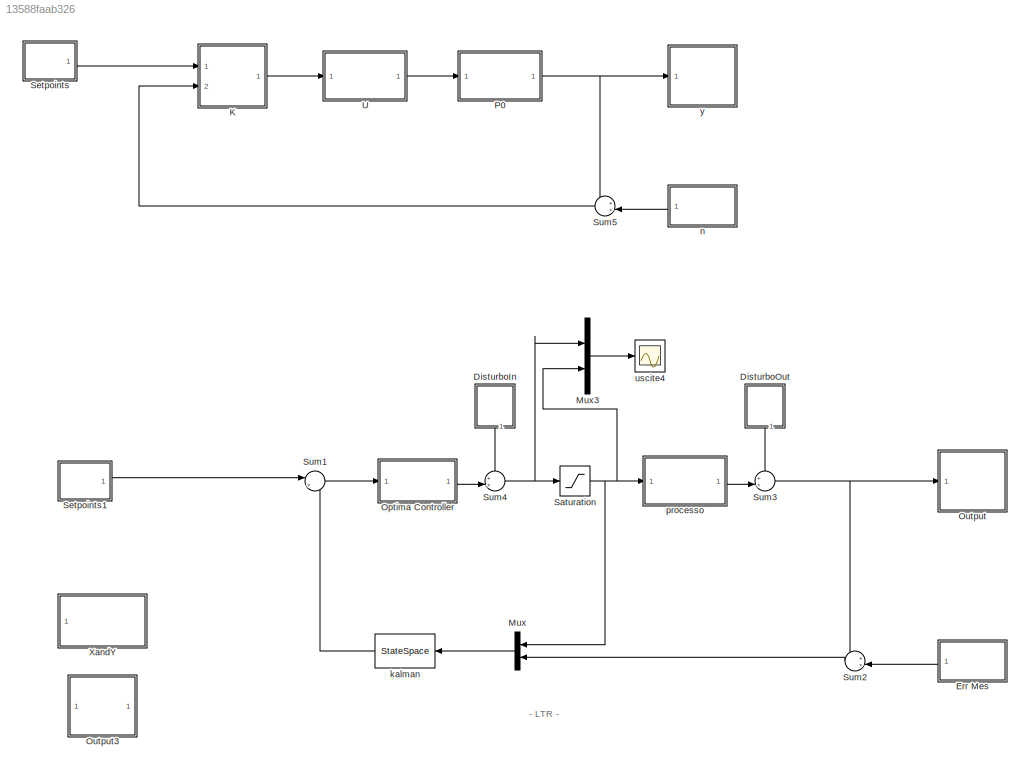
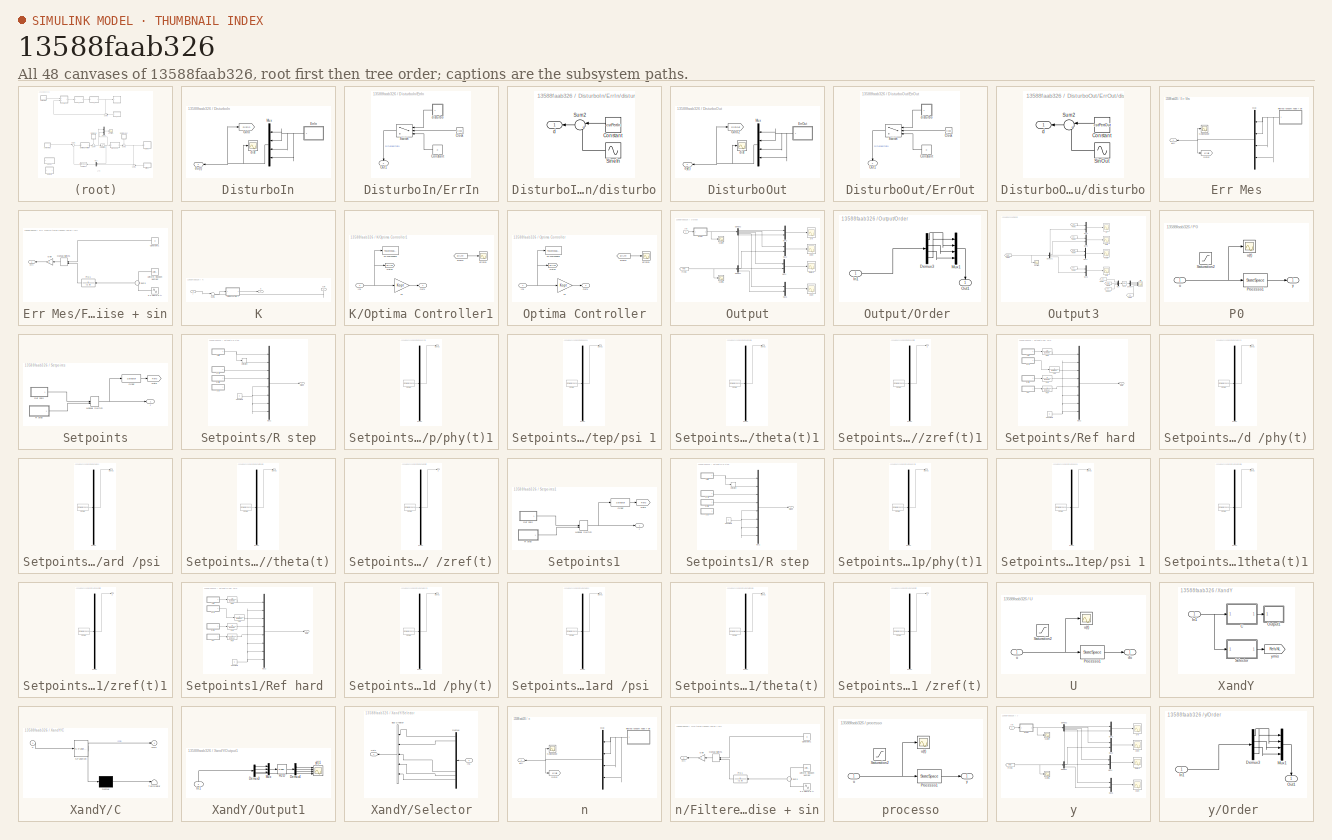
[diagram: thumbnail index - all 48 canvases of the model, root first then tree order]
MODEL slx_13588faab326
KIND model
CONFIG AbsTol = auto
CONFIG EnableMultiTasking = on
CONFIG FixedStep = auto
CONFIG MaxStep = auto
CONFIG MinStep = auto
CONFIG RelTol = 1e-3
CONFIG SampleTimeConstraint = Unconstrained
CONFIG Solver = ode45
CONFIG SolverName = ode45
CONFIG StartTime = 0.0
CONFIG StopTime = 20
BLOCK [StateSpace]  kalman 
  A = KAoss
  B = KBossw
  C = KCoss
  D = KDoss
  Ports = [1, 1]
  X0 = 0
BLOCK [SubSystem] DisturboIn
  Ports = [0, 1]
  RequestExecContextInheritance = off
  Variant = off
BLOCK [SubSystem] DisturboIn/ErrIn
  Ports = [0, 1]
  RequestExecContextInheritance = off
  Variant = off
BLOCK [Clock] DisturboIn/ErrIn/Clock
BLOCK [Constant] DisturboIn/ErrIn/Constant
  Value = 0
BLOCK [Outport] DisturboIn/ErrIn/Out1
  IconDisplay = Port number
BLOCK [Switch] DisturboIn/ErrIn/Switch
  InputSameDT = off
  SaturateOnIntegerOverflow = off
  Threshold = 5
BLOCK [SubSystem] DisturboIn/ErrIn/disturbo
  Ports = [0, 1]
  RequestExecContextInheritance = off
  Variant = off
BLOCK [Constant] DisturboIn/ErrIn/disturbo/Constant
  Value = cstPertIn
BLOCK [Sin] DisturboIn/ErrIn/disturbo/SineIn
  Amplitude = amplitudePertIn
  Frequency = omegaPertIN
  Ports = [0, 1]
  SampleTime = 0
BLOCK [Sum] DisturboIn/ErrIn/disturbo/Sum2
  IconShape = round
  InputSameDT = off
  Inputs = |++
  OutDataTypeStr = Inherit: Inherit via internal rule
  Ports = [2, 1]
  SaturateOnIntegerOverflow = off
BLOCK [Outport] DisturboIn/ErrIn/disturbo/d
  IconDisplay = Port number
BLOCK [Goto] DisturboIn/Goto
  GotoTag = DistIn
  TagVisibility = global
BLOCK [Mux] DisturboIn/Mux
  DisplayOption = bar
  Inputs = [1 1 1 1]
  Ports = [4, 1]
BLOCK [Scope] DisturboIn/dist
  NumInputPorts = 1
  Ports = [1]
  ScopeSpecificationString = C++SS(StrPVP('Location','[71, 119, 1081, 656]'),StrPVP('Open','off'),MxPVP('AxesTitles',53,'struct(''axes1'',''%<SignalLabel>'')'),MxPVP('ScopeGraphics',56,'struct(''FigureColor'',''[0.5 0.5 0.5]'',''AxesColor'',''[0 0 0]'',''AxesTickColor'',''[1 1 1]'',''LineColors'',''[1 1 0;1 0 1;0 1 1;1 0 0;0 1 0;0 0 1]'',''LineStyles'',''-|-|-|-|-|-'',''LineWidths'',''[0.5 0.5 0.5 0.5 0.5 0.5]'',''MarkerStyle...<+314ch>
BLOCK [Outport] DisturboIn/du(t)
  IconDisplay = Port number
BLOCK [SubSystem] DisturboOut
  Ports = [0, 1]
  RequestExecContextInheritance = off
  Variant = off
BLOCK [SubSystem] DisturboOut/ErrOut
  Ports = [0, 1]
  RequestExecContextInheritance = off
  Variant = off
BLOCK [Clock] DisturboOut/ErrOut/Clock
BLOCK [Constant] DisturboOut/ErrOut/Constant
  Value = 0
BLOCK [Outport] DisturboOut/ErrOut/Out1
  IconDisplay = Port number
BLOCK [Switch] DisturboOut/ErrOut/Switch
  InputSameDT = off
  SaturateOnIntegerOverflow = off
  Threshold = 5
BLOCK [SubSystem] DisturboOut/ErrOut/disturbo
  Ports = [0, 1]
  RequestExecContextInheritance = off
  Variant = off
BLOCK [Constant] DisturboOut/ErrOut/disturbo/Constant
  Value = cstPertOut
BLOCK [Sin] DisturboOut/ErrOut/disturbo/SinOut
  Amplitude = amplitudePertOut
  Frequency = omegaPertOut
  Ports = [0, 1]
  SampleTime = 0
BLOCK [Sum] DisturboOut/ErrOut/disturbo/Sum2
  IconShape = round
  InputSameDT = off
  Inputs = |++
  OutDataTypeStr = Inherit: Inherit via internal rule
  Ports = [2, 1]
  SaturateOnIntegerOverflow = off
BLOCK [Outport] DisturboOut/ErrOut/disturbo/d
  IconDisplay = Port number
BLOCK [Goto] DisturboOut/Goto2
  GotoTag = DistOut
  TagVisibility = global
BLOCK [Mux] DisturboOut/Mux
  DisplayOption = bar
  Inputs = [1 1 1 1]
  Ports = [4, 1]
BLOCK [Scope] DisturboOut/dist
  NumInputPorts = 1
  Ports = [1]
  ScopeSpecificationString = C++SS(StrPVP('Location','[76, 122, 1076, 657]'),StrPVP('Open','off'),MxPVP('AxesTitles',53,'struct(''axes1'',''%<SignalLabel>'')'),MxPVP('ScopeGraphics',56,'struct(''FigureColor'',''[0.5 0.5 0.5]'',''AxesColor'',''[0 0 0]'',''AxesTickColor'',''[1 1 1]'',''LineColors'',''[1 1 0;1 0 1;0 1 1;1 0 0;0 1 0;0 0 1]'',''LineStyles'',''-|-|-|-|-|-'',''LineWidths'',''[0.5 0.5 0.5 0.5 0.5 0.5]'',''MarkerStyle...<+310ch>
BLOCK [Outport] DisturboOut/dy(t) 
  IconDisplay = Port number
BLOCK [SubSystem] Err Mes
  Ports = [0, 1]
  RequestExecContextInheritance = off
  Variant = off
BLOCK [Outport] Err Mes/  d(t)
  IconDisplay = Port number
BLOCK [SubSystem] Err Mes/Filtered random noise + sin
  Ports = [0, 1]
  RequestExecContextInheritance = off
  Variant = off
BLOCK [Sin] Err Mes/Filtered random noise + sin/0.2 sen(0.5 t)
  Amplitude = amplitudeNoise
  Frequency = omegaNoise
  Phase = 1
  Ports = [0, 1]
  SampleTime = 0
BLOCK [Constant] Err Mes/Filtered random noise + sin/Constant1
  Value = 0
BLOCK [Gain] Err Mes/Filtered random noise + sin/Gain
  OutDataTypeStr = Inherit: Inherit via internal rule
  ParamDataTypeStr = Inherit: Inherit via internal rule
  SaturateOnIntegerOverflow = off
BLOCK [ManualSwitch] Err Mes/Filtered random noise + sin/Manual Switch1
  CurrentSetting = 0
BLOCK [TransferFcn] Err Mes/Filtered random noise + sin/P(s)1
  Denominator = [1 9]
  Numerator = 1
BLOCK [Sum] Err Mes/Filtered random noise + sin/Sum3
  IconShape = round
  InputSameDT = off
  OutDataTypeStr = Inherit: Inherit via internal rule
  Ports = [2, 1]
  SaturateOnIntegerOverflow = off
BLOCK [UniformRandomNumber] Err Mes/Filtered random noise + sin/Uniform Random Number
  Maximum = randomAmpNoise
  Minimum = -randomAmpNoise
  SampleTime = 0.1
BLOCK [Outport] Err Mes/Filtered random noise + sin/n(t)
  IconDisplay = Port number
BLOCK [Goto] Err Mes/Goto2
  GotoTag = errMis
  TagVisibility = global
BLOCK [Mux] Err Mes/Mux
  DisplayOption = bar
  Inputs = [1 1 1 1]
  Ports = [4, 1]
BLOCK [Scope] Err Mes/NoiseScope
  NumInputPorts = 1
  Ports = [1]
  ScopeSpecificationString = C++SS(StrPVP('Location','[71, 155, 689, 419]'),StrPVP('Open','off'),MxPVP('AxesTitles',53,'struct(''axes1'',''%<SignalLabel>'')'),MxPVP('ScopeGraphics',56,'struct(''FigureColor'',''[0.5 0.5 0.5]'',''AxesColor'',''[0 0 0]'',''AxesTickColor'',''[1 1 1]'',''LineColors'',''[1 1 0;1 0 1;0 1 1;1 0 0;0 1 0;0 0 1]'',''LineStyles'',''-|-|-|-|-|-'',''LineWidths'',''[0.5 0.5 0.5 0.5 0.5 0.5]'',''MarkerStyles...<+291ch>
BLOCK [SubSystem] K
  Ports = [2, 1]
  RequestExecContextInheritance = off
  Variant = off
BLOCK [SubSystem] K/Optima Controller1
  Ports = [1, 1]
  RequestExecContextInheritance = off
  Variant = off
BLOCK [Gain] K/Optima Controller1/F1
  Gain = Kopt
  Multiplication = Matrix(K*u) (u vector)
  OutDataTypeStr = Inherit: Inherit via internal rule
  ParamDataTypeStr = Inherit: Inherit via internal rule
  SaturateOnIntegerOverflow = off
BLOCK [From] K/Optima Controller1/From3
  GotoTag = ErrLTR
  TagVisibility = global
BLOCK [Goto] K/Optima Controller1/Goto1
  GotoTag = ErrLTR
  TagVisibility = global
BLOCK [Inport] K/Optima Controller1/In1
  IconDisplay = Port number
BLOCK [Outport] K/Optima Controller1/Out1
  IconDisplay = Port number
BLOCK [ToWorkspace] K/Optima Controller1/To Workspace
  MaxDataPoints = inf
  Ports = [1]
  SampleTime = -1
  SaveFormat = Structure
  VariableName = errSimLTR
BLOCK [Scope] K/Optima Controller1/errore1
  NumInputPorts = 1
  Ports = [1]
  ScopeSpecificationString = C++SS(StrPVP('Location','[71, 94, 1081, 628]'),StrPVP('Open','off'),StrPVP('ZoomMode','xonly'),MxPVP('AxesTitles',53,'struct(''axes1'',''%<SignalLabel>'')'),MxPVP('ScopeGraphics',56,'struct(''FigureColor'',''[0.5 0.5 0.5]'',''AxesColor'',''[0 0 0]'',''AxesTickColor'',''[1 1 1]'',''LineColors'',''[1 1 0;1 0 1;0 1 1;1 0 0;0 1 0;0 0 1]'',''LineStyles'',''-|-|-|-|-|-'',''LineWidths'',''[0.5 0.5 0.5 0....<+338ch>
BLOCK [Sum] K/Sum5
  IconShape = round
  InputSameDT = off
  Inputs = |+-
  OutDataTypeStr = Inherit: Inherit via internal rule
  Ports = [2, 1]
  SaturateOnIntegerOverflow = off
BLOCK [Inport] K/r
  IconDisplay = Port number
BLOCK [Outport] K/u
  IconDisplay = Port number
BLOCK [Inport] K/y+n
  IconDisplay = Port number
  Port = 2
BLOCK [Mux] Mux
  DisplayOption = bar
  Inputs = 2
  Ports = [2, 1]
BLOCK [Mux] Mux3
  DisplayOption = bar
  Inputs = 2
  Ports = [2, 1]
BLOCK [SubSystem] Optima Controller
  Ports = [1, 1]
  RequestExecContextInheritance = off
  Variant = off
BLOCK [Gain] Optima Controller/F1
  Gain = Kopt
  Multiplication = Matrix(K*u) (u vector)
  OutDataTypeStr = Inherit: Inherit via internal rule
  ParamDataTypeStr = Inherit: Inherit via internal rule
  SaturateOnIntegerOverflow = off
BLOCK [From] Optima Controller/From3
  GotoTag = ErrLTR
  TagVisibility = global
BLOCK [Goto] Optima Controller/Goto1
  GotoTag = ErrLTR
  TagVisibility = global
BLOCK [Inport] Optima Controller/In1
  IconDisplay = Port number
BLOCK [Outport] Optima Controller/Out1
  IconDisplay = Port number
BLOCK [ToWorkspace] Optima Controller/To Workspace
  MaxDataPoints = inf
  Ports = [1]
  SampleTime = -1
  SaveFormat = Structure
  VariableName = errSimLTR
BLOCK [Scope] Optima Controller/errore1
  NumInputPorts = 1
  Ports = [1]
  ScopeSpecificationString = C++SS(StrPVP('Location','[71, 94, 1081, 628]'),StrPVP('Open','off'),StrPVP('ZoomMode','xonly'),MxPVP('AxesTitles',53,'struct(''axes1'',''%<SignalLabel>'')'),MxPVP('ScopeGraphics',56,'struct(''FigureColor'',''[0.5 0.5 0.5]'',''AxesColor'',''[0 0 0]'',''AxesTickColor'',''[1 1 1]'',''LineColors'',''[1 1 0;1 0 1;0 1 1;1 0 0;0 1 0;0 0 1]'',''LineStyles'',''-|-|-|-|-|-'',''LineWidths'',''[0.5 0.5 0.5 0....<+338ch>
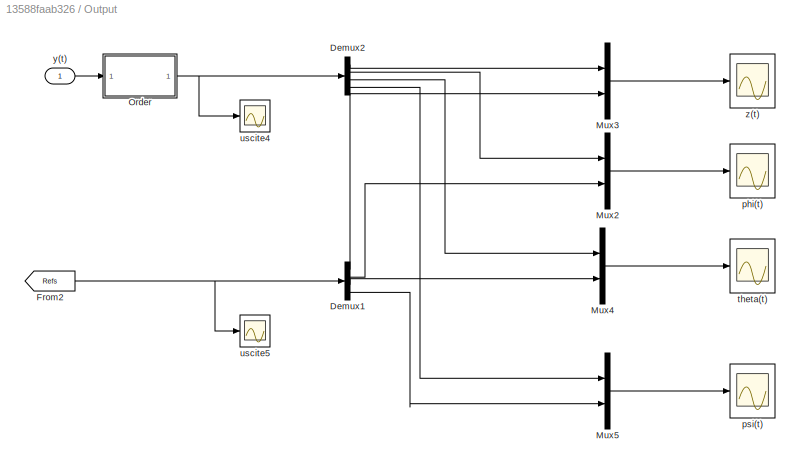
BLOCK [SubSystem] Output
  Ports = [1]
  RequestExecContextInheritance = off
  Variant = off
BLOCK [Demux] Output/Demux1
  DisplayOption = bar
  Ports = [1, 4]
BLOCK [Demux] Output/Demux2
  DisplayOption = bar
  Ports = [1, 4]
BLOCK [From] Output/From2
  GotoTag = Refs
  TagVisibility = global
BLOCK [Mux] Output/Mux2
  DisplayOption = bar
  Inputs = 2
  Ports = [2, 1]
BLOCK [Mux] Output/Mux3
  DisplayOption = bar
  Inputs = 2
  Ports = [2, 1]
BLOCK [Mux] Output/Mux4
  DisplayOption = bar
  Inputs = 2
  Ports = [2, 1]
BLOCK [Mux] Output/Mux5
  DisplayOption = bar
  Inputs = 2
  Ports = [2, 1]
BLOCK [SubSystem] Output/Order 
  Ports = [1, 1]
  RequestExecContextInheritance = off
  Variant = off
BLOCK [Demux] Output/Order /Demux3
  DisplayOption = bar
  Ports = [1, 4]
BLOCK [Inport] Output/Order /In1
  IconDisplay = Port number
BLOCK [Mux] Output/Order /Mux1
  DisplayOption = bar
  Ports = [4, 1]
BLOCK [Outport] Output/Order /Out1
  IconDisplay = Port number
BLOCK [Scope] Output/phi(t)
  NumInputPorts = 1
  Ports = [1]
  ScopeSpecificationString = Simulink.scopes.TimeScopeBlockCfg('CurrentConfiguration', extmgr.ConfigurationSet(extmgr.Configuration('Core','General UI',true),extmgr.Configuration('Core','Source UI',true),extmgr.Configuration('Sources','WiredSimulink',true,'DataLoggingVariableName','ScopeData4','DataLoggingSaveFormat','StructureWithTime','DataLoggingDecimation','1','DataLoggingDecimateData',true),extmgr.Configuration('Visuals'...<+1777ch>
BLOCK [Scope] Output/psi(t)
  NumInputPorts = 1
  Ports = [1]
  ScopeSpecificationString = Simulink.scopes.TimeScopeBlockCfg('CurrentConfiguration', extmgr.ConfigurationSet(extmgr.Configuration('Core','General UI',true),extmgr.Configuration('Core','Source UI',true),extmgr.Configuration('Sources','WiredSimulink',true,'DataLoggingVariableName','ScopeData7','DataLoggingSaveFormat','StructureWithTime','DataLoggingDecimation','1','DataLoggingDecimateData',true),extmgr.Configuration('Visuals'...<+1754ch>
BLOCK [Scope] Output/theta(t)
  NumInputPorts = 1
  Ports = [1]
  ScopeSpecificationString = Simulink.scopes.TimeScopeBlockCfg('CurrentConfiguration', extmgr.ConfigurationSet(extmgr.Configuration('Core','General UI',true),extmgr.Configuration('Core','Source UI',true),extmgr.Configuration('Sources','WiredSimulink',true,'DataLoggingVariableName','ScopeData6','DataLoggingSaveFormat','StructureWithTime','DataLoggingDecimation','1','DataLoggingDecimateData',true),extmgr.Configuration('Visuals'...<+1726ch>
BLOCK [Scope] Output/uscite4
  NumInputPorts = 1
  Ports = [1]
  ScopeSpecificationString = Simulink.scopes.TimeScopeBlockCfg('CurrentConfiguration', extmgr.ConfigurationSet(extmgr.Configuration('Core','General UI',true),extmgr.Configuration('Core','Source UI',true),extmgr.Configuration('Sources','WiredSimulink',true,'DataLoggingVariableName','ScopeData2','DataLoggingSaveFormat','StructureWithTime','DataLoggingDecimation','1','DataLoggingDecimateData',true),extmgr.Configuration('Visuals'...<+1752ch>
BLOCK [Scope] Output/uscite5
  NumInputPorts = 1
  Ports = [1]
  ScopeSpecificationString = C++SS(StrPVP('Location','[76, 81, 1076, 613]'),StrPVP('Open','off'),MxPVP('AxesTitles',53,'struct(''axes1'',''%<SignalLabel>'')'),MxPVP('ScopeGraphics',56,'struct(''FigureColor'',''[0.5 0.5 0.5]'',''AxesColor'',''[0 0 0]'',''AxesTickColor'',''[1 1 1]'',''LineColors'',''[1 1 0;1 0 1;0 1 1;1 0 0;0 1 0;0 0 1]'',''LineStyles'',''-|-|-|-|-|-'',''LineWidths'',''[0.5 0.5 0.5 0.5 0.5 0.5]'',''MarkerStyles...<+312ch>  <repeated x3 — deduplicated; at blocks: uscite5>
BLOCK [Inport] Output/y(t)
  IconDisplay = Port number
BLOCK [Scope] Output/z(t)
  NumInputPorts = 1
  Ports = [1]
  ScopeSpecificationString = Simulink.scopes.TimeScopeBlockCfg('CurrentConfiguration', extmgr.ConfigurationSet(extmgr.Configuration('Core','General UI',true,'FigureColor',[0.501960784313725 0.501960784313725 0.501960784313725]),extmgr.Configuration('Core','Source UI',true),extmgr.Configuration('Sources','WiredSimulink',true,'DataLoggingSaveFormat','StructureWithTime','DataLoggingDecimation','1','DataLoggingDecimateData',true)...<+2794ch>
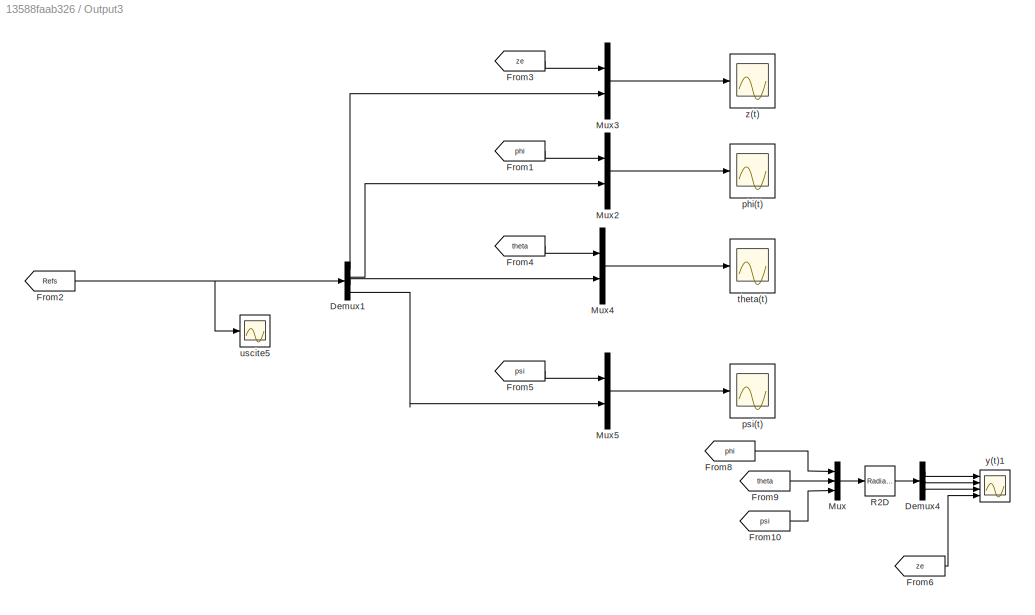
BLOCK [SubSystem] Output3
  Ports = []
  RequestExecContextInheritance = off
  Variant = off
BLOCK [Demux] Output3/Demux1
  DisplayOption = bar
  Ports = [1, 4]
BLOCK [Demux] Output3/Demux4
  DisplayOption = bar
  Outputs = 3
  Ports = [1, 3]
BLOCK [From] Output3/From1
  GotoTag = phi
BLOCK [From] Output3/From10
  GotoTag = psi
BLOCK [From] Output3/From2
  GotoTag = Refs
  TagVisibility = global
BLOCK [From] Output3/From3
  GotoTag = ze
BLOCK [From] Output3/From4
  GotoTag = theta
BLOCK [From] Output3/From5
  GotoTag = psi
BLOCK [From] Output3/From6
  GotoTag = ze
BLOCK [From] Output3/From8
  GotoTag = phi
BLOCK [From] Output3/From9
  GotoTag = theta
BLOCK [Mux] Output3/Mux
  DisplayOption = bar
  Inputs = 3
  Ports = [3, 1]
BLOCK [Mux] Output3/Mux2
  DisplayOption = bar
  Inputs = 2
  Ports = [2, 1]
BLOCK [Mux] Output3/Mux3
  DisplayOption = bar
  Inputs = 2
  Ports = [2, 1]
BLOCK [Mux] Output3/Mux4
  DisplayOption = bar
  Inputs = 2
  Ports = [2, 1]
BLOCK [Mux] Output3/Mux5
  DisplayOption = bar
  Inputs = 2
  Ports = [2, 1]
BLOCK [Reference] Output3/R2D  REF=simulink_extras/Transformations/Radians
to Degrees
  Ports = [1, 1]
  SourceBlock = simulink_extras/Transformations/Radians\nto Degrees
  SourceProductBaseCode = SL
  SourceProductName = Simulink
  SourceType = RadiansToDegrees
BLOCK [Scope] Output3/phi(t)
  NumInputPorts = 1
  Ports = [1]
  ScopeSpecificationString = C++SS(StrPVP('Location','[171, 167, 1171, 702]'),StrPVP('Open','off'),StrPVP('TickLabels','on'),MxPVP('AxesTitles',53,'struct(''axes1'',''%<SignalLabel>'')'),MxPVP('ScopeGraphics',56,'struct(''FigureColor'',''[0.501960784313725 0.501960784313725 0.501960784313725]'',''AxesColor'',''[0 0 0]'',''AxesTickColor'',''[1 1 1]'',''LineColors'',''[1 1 0;1 0 1;0 1 1;1 0 0;0 1 0;0 0 1]'',''LineStyles'',''-|-...<+406ch>
BLOCK [Scope] Output3/psi(t)
  NumInputPorts = 1
  Ports = [1]
  ScopeSpecificationString = C++SS(StrPVP('Location','[206, 278, 1206, 757]'),StrPVP('Open','off'),StrPVP('TickLabels','on'),MxPVP('AxesTitles',53,'struct(''axes1'',''%<SignalLabel>'')'),MxPVP('ScopeGraphics',56,'struct(''FigureColor'',''[0.501960784313725 0.501960784313725 0.501960784313725]'',''AxesColor'',''[0 0 0]'',''AxesTickColor'',''[1 1 1]'',''LineColors'',''[1 1 0;1 0 1;0 1 1;1 0 0;0 1 0;0 0 1]'',''LineStyles'',''-|-...<+384ch>
BLOCK [Scope] Output3/theta(t)
  NumInputPorts = 1
  Ports = [1]
  ScopeSpecificationString = C++SS(StrPVP('Location','[211, 110, 1231, 621]'),StrPVP('Open','off'),StrPVP('TickLabels','on'),StrPVP('ZoomMode','yonly'),MxPVP('AxesTitles',53,'struct(''axes1'',''%<SignalLabel>'')'),MxPVP('ScopeGraphics',56,'struct(''FigureColor'',''[0.501960784313725 0.501960784313725 0.501960784313725]'',''AxesColor'',''[0 0 0]'',''AxesTickColor'',''[1 1 1]'',''LineColors'',''[1 1 0;1 0 1;0 1 1;1 0 0;0 1 0;0 ...<+381ch>
BLOCK [Scope] Output3/uscite5
  NumInputPorts = 1
  Ports = [1]
BLOCK [Scope] Output3/y(t)1
  NumInputPorts = 4
  Ports = [4]
  ScopeSpecificationString = C++SS(StrPVP('Location','[54, 53, 1367, 767]'),StrPVP('Open','off'),MxPVP('AxesTitles',53,'struct(''axes1'',''%<SignalLabel>'',''axes2'',''%<SignalLabel>'',''axes3'',''%<SignalLabel>'',''axes4'',''%<SignalLabel>'')'),MxPVP('ScopeGraphics',56,'struct(''FigureColor'',''[0.501960784313725 0.501960784313725 0.501960784313725]'',''AxesColor'',''[0 0 0]'',''AxesTickColor'',''[1 1 1]'',''LineColors'',''[...<+475ch>
BLOCK [Scope] Output3/z(t)
  NumInputPorts = 1
  Ports = [1]
  ScopeSpecificationString = C++SS(StrPVP('Location','[-1295, 174, -315, 649]'),StrPVP('Open','off'),StrPVP('TickLabels','on'),MxPVP('AxesTitles',53,'struct(''axes1'',''%<SignalLabel>'')'),MxPVP('ScopeGraphics',56,'struct(''FigureColor'',''[0.501960784313725 0.501960784313725 0.501960784313725]'',''AxesColor'',''[0 0 0]'',''AxesTickColor'',''[1 1 1]'',''LineColors'',''[0.0392156862745098 0.141176470588235 0.415686274509804;0 ...<+398ch>
BLOCK [SubSystem] P0
  Ports = [1, 1]
  RequestExecContextInheritance = off
  Variant = off
BLOCK [StateSpace] P0/Processo1
  A = A0
  B = B0
  C = C0
  D = D0
  Ports = [1, 1]
  X0 = 0
BLOCK [Saturate] P0/Saturation2
  InputPortMap = u0
  LowerLimit = -24000
  Ports = [1, 1]
  UpperLimit = 24000
BLOCK [Inport] P0/u
  IconDisplay = Port number
BLOCK [Scope] P0/u(t) 
  NumInputPorts = 1
  Ports = [1]
  ScopeSpecificationString = C++SS(StrPVP('Location','[71, 168, 1081, 649]'),StrPVP('Open','off'),MxPVP('AxesTitles',53,'struct(''axes1'',''%<SignalLabel>'')'),MxPVP('ScopeGraphics',56,'struct(''FigureColor'',''[0.5 0.5 0.5]'',''AxesColor'',''[0 0 0]'',''AxesTickColor'',''[1 1 1]'',''LineColors'',''[1 1 0;1 0 1;0 1 1;1 0 0;0 1 0;0 0 1]'',''LineStyles'',''-|-|-|-|-|-'',''LineWidths'',''[0.5 0.5 0.5 0.5 0.5 0.5]'',''MarkerStyle...<+245ch>  <repeated x3 — deduplicated; at blocks: u(t)>
BLOCK [Outport] P0/y
  IconDisplay = Port number
BLOCK [Saturate] Saturation
  InputPortMap = u0
  LowerLimit = -10000
  Ports = [1, 1]
  UpperLimit = 10000
BLOCK [SubSystem] Setpoints
  Ports = [0, 1]
  RequestExecContextInheritance = off
  Variant = off
BLOCK [Goto] Setpoints/Goto
  GotoTag = Refs
  TagVisibility = global
BLOCK [ManualSwitch] Setpoints/Manual Switch
BLOCK [Selector] Setpoints/Order
  IndexOptions = Index vector (dialog)
  Indices = [1,3,4,5]
  InputPortWidth = 8
  OutputSizes = 1
  Ports = [1, 1]
BLOCK [SubSystem] Setpoints/R step
  Ports = [0, 1]
  RequestExecContextInheritance = off
  Variant = off
BLOCK [Constant] Setpoints/R step/Constant1
  Value = 0
BLOCK [Derivative] Setpoints/R step/Derivative
BLOCK [Mux] Setpoints/R step/Mux1
  DisplayOption = bar
  Inputs = [1 1 1 1 1 1 1 1]
  Ports = [8, 1]
BLOCK [SubSystem] Setpoints/R step/phy(t)1
  ClipboardFcn = sigbuilder_block('clipboard');
  CloseFcn = sigbuilder_block('close');
  ContinueFcn = sigbuilder_block('continue');
  CopyFcn = sigbuilder_block('copy');
  DeleteFcn = sigbuilder_block('delete');
  LoadFcn = sigbuilder_block('load');
  MaskHideContents = on
  ModelCloseFcn = sigbuilder_block('modelClose');
  NameChangeFcn = sigbuilder_block('namechange');
  OpenFcn = sigbuilder_block('open',[330 24 573 467.25 ]);
  PauseFcn = sigbuilder_block('pause');
  Ports = [0, 1]
  PreSaveFcn = sigbuilder_block('preSave');
  RequestExecContextInheritance = off
  StartFcn = sigbuilder_block('start');
  StopFcn = sigbuilder_block('stop');
  Tag = STV Subsys
  Variant = off
BLOCK [Demux] Setpoints/R step/phy(t)1/Demux
  Outputs = 1
  Ports = [1, 1]
  Tag = STV Demux
BLOCK [FromWorkspace] Setpoints/R step/phy(t)1/FromWs
  SampleTime = 0
  Tag = STV FromWs
  VariableName = tuvar
  ZeroCross = on
BLOCK [Outport] Setpoints/R step/phy(t)1/Signal 1
  IconDisplay = Port number
  Tag = STV Outport
BLOCK [SubSystem] Setpoints/R step/psi 1
  ClipboardFcn = sigbuilder_block('clipboard');
  CloseFcn = sigbuilder_block('close');
  ContinueFcn = sigbuilder_block('continue');
  CopyFcn = sigbuilder_block('copy');
  DeleteFcn = sigbuilder_block('delete');
  LoadFcn = sigbuilder_block('load');
  MaskHideContents = on
  ModelCloseFcn = sigbuilder_block('modelClose');
  NameChangeFcn = sigbuilder_block('namechange');
  OpenFcn = sigbuilder_block('open',[326.25 -0.75 580.5 489.75 ]);
  PauseFcn = sigbuilder_block('pause');
  Ports = [0, 1]
  PreSaveFcn = sigbuilder_block('preSave');
  RequestExecContextInheritance = off
  StartFcn = sigbuilder_block('start');
  StopFcn = sigbuilder_block('stop');
  Tag = STV Subsys
  Variant = off
BLOCK [Demux] Setpoints/R step/psi 1/Demux
  Outputs = 1
  Ports = [1, 1]
  Tag = STV Demux
BLOCK [FromWorkspace] Setpoints/R step/psi 1/FromWs
  SampleTime = 0
  Tag = STV FromWs
  VariableName = tuvar
  ZeroCross = on
BLOCK [Outport] Setpoints/R step/psi 1/Signal 1
  IconDisplay = Port number
  Tag = STV Outport
BLOCK [Outport] Setpoints/R step/steps 
  IconDisplay = Port number
BLOCK [SubSystem] Setpoints/R step/theta(t)1
  ClipboardFcn = sigbuilder_block('clipboard');
  CloseFcn = sigbuilder_block('close');
  ContinueFcn = sigbuilder_block('continue');
  CopyFcn = sigbuilder_block('copy');
  DeleteFcn = sigbuilder_block('delete');
  LoadFcn = sigbuilder_block('load');
  MaskHideContents = on
  ModelCloseFcn = sigbuilder_block('modelClose');
  NameChangeFcn = sigbuilder_block('namechange');
  OpenFcn = sigbuilder_block('open',[333.75 27.75 565.5 444.75 ]);
  PauseFcn = sigbuilder_block('pause');
  Ports = [0, 1]
  PreSaveFcn = sigbuilder_block('preSave');
  RequestExecContextInheritance = off
  StartFcn = sigbuilder_block('start');
  StopFcn = sigbuilder_block('stop');
  Tag = STV Subsys
  Variant = off
BLOCK [Demux] Setpoints/R step/theta(t)1/Demux
  Outputs = 1
  Ports = [1, 1]
  Tag = STV Demux
BLOCK [FromWorkspace] Setpoints/R step/theta(t)1/FromWs
  SampleTime = 0
  Tag = STV FromWs
  VariableName = tuvar
  ZeroCross = on
BLOCK [Outport] Setpoints/R step/theta(t)1/Signal 1
  IconDisplay = Port number
  Tag = STV Outport
BLOCK [SubSystem] Setpoints/R step/zref(t)1
  ClipboardFcn = sigbuilder_block('clipboard');
  CloseFcn = sigbuilder_block('close');
  ContinueFcn = sigbuilder_block('continue');
  CopyFcn = sigbuilder_block('copy');
  DeleteFcn = sigbuilder_block('delete');
  LoadFcn = sigbuilder_block('load');
  MaskHideContents = on
  ModelCloseFcn = sigbuilder_block('modelClose');
  NameChangeFcn = sigbuilder_block('namechange');
  OpenFcn = sigbuilder_block('open',[337.5 52.5 558 422.25 ]);
  PauseFcn = sigbuilder_block('pause');
  Ports = [0, 1]
  PreSaveFcn = sigbuilder_block('preSave');
  RequestExecContextInheritance = off
  StartFcn = sigbuilder_block('start');
  StopFcn = sigbuilder_block('stop');
  Tag = STV Subsys
  Variant = off
BLOCK [Demux] Setpoints/R step/zref(t)1/Demux
  Outputs = 1
  Ports = [1, 1]
  Tag = STV Demux
BLOCK [FromWorkspace] Setpoints/R step/zref(t)1/FromWs
  SampleTime = 0
  Tag = STV FromWs
  VariableName = tuvar
  ZeroCross = on
BLOCK [Outport] Setpoints/R step/zref(t)1/Z
  IconDisplay = Port number
  Tag = STV Outport
BLOCK [SubSystem] Setpoints/Ref hard 
  Ports = [0, 1]
  RequestExecContextInheritance = off
  Variant = off
BLOCK [Constant] Setpoints/Ref hard /Constant2
  Value = 0
BLOCK [Mux] Setpoints/Ref hard /Mux2
  DisplayOption = bar
  Inputs = [1 1 1 1 1 1 1 1]
  Ports = [8, 1]
BLOCK [TransferFcn] Setpoints/Ref hard /P(s)1
  Denominator = [1 20 30]
  Numerator = 15
BLOCK [TransferFcn] Setpoints/Ref hard /P(s)2
  Denominator = [1 0.8 1.1]
  Numerator = 1
BLOCK [TransferFcn] Setpoints/Ref hard /P(s)3
  Denominator = [1 20 30]
  Numerator = 5
BLOCK [TransferFcn] Setpoints/Ref hard /P(s)4
  Denominator = [1 0.8 1.1]
  Numerator = 1
BLOCK [SubSystem] Setpoints/Ref hard /phy(t)
  ClipboardFcn = sigbuilder_block('clipboard');
  CloseFcn = sigbuilder_block('close');
  ContinueFcn = sigbuilder_block('continue');
  CopyFcn = sigbuilder_block('copy');
  DeleteFcn = sigbuilder_block('delete');
  LoadFcn = sigbuilder_block('load');
  MaskHideContents = on
  ModelCloseFcn = sigbuilder_block('modelClose');
  NameChangeFcn = sigbuilder_block('namechange');
  OpenFcn = sigbuilder_block('open',[333.75 48.75 565.5 444.75 ]);
  PauseFcn = sigbuilder_block('pause');
  Ports = [0, 1]
  PreSaveFcn = sigbuilder_block('preSave');
  RequestExecContextInheritance = off
  StartFcn = sigbuilder_block('start');
  StopFcn = sigbuilder_block('stop');
  Tag = STV Subsys
  Variant = off
BLOCK [Demux] Setpoints/Ref hard /phy(t)/Demux
  Outputs = 1
  Ports = [1, 1]
  Tag = STV Demux
BLOCK [FromWorkspace] Setpoints/Ref hard /phy(t)/FromWs
  SampleTime = 0
  Tag = STV FromWs
  VariableName = tuvar
  ZeroCross = on
BLOCK [Outport] Setpoints/Ref hard /phy(t)/Signal 1
  IconDisplay = Port number
  Tag = STV Outport
BLOCK [SubSystem] Setpoints/Ref hard /psi 
  ClipboardFcn = sigbuilder_block('clipboard');
  CloseFcn = sigbuilder_block('close');
  ContinueFcn = sigbuilder_block('continue');
  CopyFcn = sigbuilder_block('copy');
  DeleteFcn = sigbuilder_block('delete');
  LoadFcn = sigbuilder_block('load');
  MaskHideContents = on
  ModelCloseFcn = sigbuilder_block('modelClose');
  NameChangeFcn = sigbuilder_block('namechange');
  OpenFcn = sigbuilder_block('open',[330 24 573 467.25 ]);
  PauseFcn = sigbuilder_block('pause');
  Ports = [0, 1]
  PreSaveFcn = sigbuilder_block('preSave');
  RequestExecContextInheritance = off
  StartFcn = sigbuilder_block('start');
  StopFcn = sigbuilder_block('stop');
  Tag = STV Subsys
  Variant = off
BLOCK [Demux] Setpoints/Ref hard /psi /Demux
  Outputs = 1
  Ports = [1, 1]
  Tag = STV Demux
BLOCK [FromWorkspace] Setpoints/Ref hard /psi /FromWs
  SampleTime = 0
  Tag = STV FromWs
  VariableName = tuvar
  ZeroCross = on
BLOCK [Outport] Setpoints/Ref hard /psi /Signal 1
  IconDisplay = Port number
  Tag = STV Outport
BLOCK [Outport] Setpoints/Ref hard /rHard
  IconDisplay = Port number
BLOCK [SubSystem] Setpoints/Ref hard /theta(t)
  ClipboardFcn = sigbuilder_block('clipboard');
  CloseFcn = sigbuilder_block('close');
  ContinueFcn = sigbuilder_block('continue');
  CopyFcn = sigbuilder_block('copy');
  DeleteFcn = sigbuilder_block('delete');
  LoadFcn = sigbuilder_block('load');
  MaskHideContents = on
  ModelCloseFcn = sigbuilder_block('modelClose');
  NameChangeFcn = sigbuilder_block('namechange');
  OpenFcn = sigbuilder_block('open',[333.75 48.75 565.5 444.75 ]);
  PauseFcn = sigbuilder_block('pause');
  Ports = [0, 1]
  PreSaveFcn = sigbuilder_block('preSave');
  RequestExecContextInheritance = off
  StartFcn = sigbuilder_block('start');
  StopFcn = sigbuilder_block('stop');
  Tag = STV Subsys
  Variant = off
BLOCK [Demux] Setpoints/Ref hard /theta(t)/Demux
  Outputs = 1
  Ports = [1, 1]
  Tag = STV Demux
BLOCK [FromWorkspace] Setpoints/Ref hard /theta(t)/FromWs
  SampleTime = 0
  Tag = STV FromWs
  VariableName = tuvar
  ZeroCross = on
BLOCK [Outport] Setpoints/Ref hard /theta(t)/Signal 1
  IconDisplay = Port number
  Tag = STV Outport
BLOCK [SubSystem] Setpoints/Ref hard /zref(t)
  ClipboardFcn = sigbuilder_block('clipboard');
  CloseFcn = sigbuilder_block('close');
  ContinueFcn = sigbuilder_block('continue');
  CopyFcn = sigbuilder_block('copy');
  DeleteFcn = sigbuilder_block('delete');
  LoadFcn = sigbuilder_block('load');
  MaskHideContents = on
  ModelCloseFcn = sigbuilder_block('modelClose');
  NameChangeFcn = sigbuilder_block('namechange');
  OpenFcn = sigbuilder_block('open',[341.25 77.25 550.5 399.75 ]);
  PauseFcn = sigbuilder_block('pause');
  Ports = [0, 1]
  PreSaveFcn = sigbuilder_block('preSave');
  RequestExecContextInheritance = off
  StartFcn = sigbuilder_block('start');
  StopFcn = sigbuilder_block('stop');
  Tag = STV Subsys
  Variant = off
BLOCK [Demux] Setpoints/Ref hard /zref(t)/Demux
  Outputs = 1
  Ports = [1, 1]
  Tag = STV Demux
BLOCK [FromWorkspace] Setpoints/Ref hard /zref(t)/FromWs
  SampleTime = 0
  Tag = STV FromWs
  VariableName = tuvar
  ZeroCross = on
BLOCK [Outport] Setpoints/Ref hard /zref(t)/Z
  IconDisplay = Port number
  Tag = STV Outport
BLOCK [Outport] Setpoints/r
  IconDisplay = Port number
BLOCK [SubSystem] Setpoints1
  Ports = [0, 1]
  RequestExecContextInheritance = off
  Variant = off
BLOCK [Goto] Setpoints1/Goto
  GotoTag = Refs
  TagVisibility = global
BLOCK [ManualSwitch] Setpoints1/Manual Switch
BLOCK [Selector] Setpoints1/Order
  IndexOptions = Index vector (dialog)
  Indices = [1,3,4,5]
  InputPortWidth = 8
  OutputSizes = 1
  Ports = [1, 1]
BLOCK [SubSystem] Setpoints1/R step
  Ports = [0, 1]
  RequestExecContextInheritance = off
  Variant = off
BLOCK [Constant] Setpoints1/R step/Constant1
  Value = 0
BLOCK [Derivative] Setpoints1/R step/Derivative
BLOCK [Mux] Setpoints1/R step/Mux1
  DisplayOption = bar
  Inputs = [1 1 1 1 1 1 1 1]
  Ports = [8, 1]
BLOCK [SubSystem] Setpoints1/R step/phy(t)1
  ClipboardFcn = sigbuilder_block('clipboard');
  CloseFcn = sigbuilder_block('close');
  ContinueFcn = sigbuilder_block('continue');
  CopyFcn = sigbuilder_block('copy');
  DeleteFcn = sigbuilder_block('delete');
  LoadFcn = sigbuilder_block('load');
  MaskHideContents = on
  ModelCloseFcn = sigbuilder_block('modelClose');
  NameChangeFcn = sigbuilder_block('namechange');
  OpenFcn = sigbuilder_block('open',[330 24 573 467.25 ]);
  PauseFcn = sigbuilder_block('pause');
  Ports = [0, 1]
  PreSaveFcn = sigbuilder_block('preSave');
  RequestExecContextInheritance = off
  StartFcn = sigbuilder_block('start');
  StopFcn = sigbuilder_block('stop');
  Tag = STV Subsys
  Variant = off
BLOCK [Demux] Setpoints1/R step/phy(t)1/Demux
  Outputs = 1
  Ports = [1, 1]
  Tag = STV Demux
BLOCK [FromWorkspace] Setpoints1/R step/phy(t)1/FromWs
  SampleTime = 0
  Tag = STV FromWs
  VariableName = tuvar
  ZeroCross = on
BLOCK [Outport] Setpoints1/R step/phy(t)1/Signal 1
  IconDisplay = Port number
  Tag = STV Outport
BLOCK [SubSystem] Setpoints1/R step/psi 1
  ClipboardFcn = sigbuilder_block('clipboard');
  CloseFcn = sigbuilder_block('close');
  ContinueFcn = sigbuilder_block('continue');
  CopyFcn = sigbuilder_block('copy');
  DeleteFcn = sigbuilder_block('delete');
  LoadFcn = sigbuilder_block('load');
  MaskHideContents = on
  ModelCloseFcn = sigbuilder_block('modelClose');
  NameChangeFcn = sigbuilder_block('namechange');
  OpenFcn = sigbuilder_block('open',[326.25 -0.75 580.5 489.75 ]);
  PauseFcn = sigbuilder_block('pause');
  Ports = [0, 1]
  PreSaveFcn = sigbuilder_block('preSave');
  RequestExecContextInheritance = off
  StartFcn = sigbuilder_block('start');
  StopFcn = sigbuilder_block('stop');
  Tag = STV Subsys
  Variant = off
BLOCK [Demux] Setpoints1/R step/psi 1/Demux
  Outputs = 1
  Ports = [1, 1]
  Tag = STV Demux
BLOCK [FromWorkspace] Setpoints1/R step/psi 1/FromWs
  SampleTime = 0
  Tag = STV FromWs
  VariableName = tuvar
  ZeroCross = on
BLOCK [Outport] Setpoints1/R step/psi 1/Signal 1
  IconDisplay = Port number
  Tag = STV Outport
BLOCK [Outport] Setpoints1/R step/steps 
  IconDisplay = Port number
BLOCK [SubSystem] Setpoints1/R step/theta(t)1
  ClipboardFcn = sigbuilder_block('clipboard');
  CloseFcn = sigbuilder_block('close');
  ContinueFcn = sigbuilder_block('continue');
  CopyFcn = sigbuilder_block('copy');
  DeleteFcn = sigbuilder_block('delete');
  LoadFcn = sigbuilder_block('load');
  MaskHideContents = on
  ModelCloseFcn = sigbuilder_block('modelClose');
  NameChangeFcn = sigbuilder_block('namechange');
  OpenFcn = sigbuilder_block('open',[333.75 27.75 565.5 444.75 ]);
  PauseFcn = sigbuilder_block('pause');
  Ports = [0, 1]
  PreSaveFcn = sigbuilder_block('preSave');
  RequestExecContextInheritance = off
  StartFcn = sigbuilder_block('start');
  StopFcn = sigbuilder_block('stop');
  Tag = STV Subsys
  Variant = off
BLOCK [Demux] Setpoints1/R step/theta(t)1/Demux
  Outputs = 1
  Ports = [1, 1]
  Tag = STV Demux
BLOCK [FromWorkspace] Setpoints1/R step/theta(t)1/FromWs
  SampleTime = 0
  Tag = STV FromWs
  VariableName = tuvar
  ZeroCross = on
BLOCK [Outport] Setpoints1/R step/theta(t)1/Signal 1
  IconDisplay = Port number
  Tag = STV Outport
BLOCK [SubSystem] Setpoints1/R step/zref(t)1
  ClipboardFcn = sigbuilder_block('clipboard');
  CloseFcn = sigbuilder_block('close');
  ContinueFcn = sigbuilder_block('continue');
  CopyFcn = sigbuilder_block('copy');
  DeleteFcn = sigbuilder_block('delete');
  LoadFcn = sigbuilder_block('load');
  MaskHideContents = on
  ModelCloseFcn = sigbuilder_block('modelClose');
  NameChangeFcn = sigbuilder_block('namechange');
  OpenFcn = sigbuilder_block('open',[337.5 52.5 558 422.25 ]);
  PauseFcn = sigbuilder_block('pause');
  Ports = [0, 1]
  PreSaveFcn = sigbuilder_block('preSave');
  RequestExecContextInheritance = off
  StartFcn = sigbuilder_block('start');
  StopFcn = sigbuilder_block('stop');
  Tag = STV Subsys
  Variant = off
BLOCK [Demux] Setpoints1/R step/zref(t)1/Demux
  Outputs = 1
  Ports = [1, 1]
  Tag = STV Demux
BLOCK [FromWorkspace] Setpoints1/R step/zref(t)1/FromWs
  SampleTime = 0
  Tag = STV FromWs
  VariableName = tuvar
  ZeroCross = on
BLOCK [Outport] Setpoints1/R step/zref(t)1/Z
  IconDisplay = Port number
  Tag = STV Outport
BLOCK [SubSystem] Setpoints1/Ref hard 
  Ports = [0, 1]
  RequestExecContextInheritance = off
  Variant = off
BLOCK [Constant] Setpoints1/Ref hard /Constant2
  Value = 0
BLOCK [Mux] Setpoints1/Ref hard /Mux2
  DisplayOption = bar
  Inputs = [1 1 1 1 1 1 1 1]
  Ports = [8, 1]
BLOCK [TransferFcn] Setpoints1/Ref hard /P(s)1
  Denominator = [1 20 30]
  Numerator = 15
BLOCK [TransferFcn] Setpoints1/Ref hard /P(s)2
  Denominator = [1 0.8 1.1]
  Numerator = 1
BLOCK [TransferFcn] Setpoints1/Ref hard /P(s)3
  Denominator = [1 20 30]
  Numerator = 5
BLOCK [TransferFcn] Setpoints1/Ref hard /P(s)4
  Denominator = [1 0.8 1.1]
  Numerator = 1
BLOCK [SubSystem] Setpoints1/Ref hard /phy(t)
  ClipboardFcn = sigbuilder_block('clipboard');
  CloseFcn = sigbuilder_block('close');
  ContinueFcn = sigbuilder_block('continue');
  CopyFcn = sigbuilder_block('copy');
  DeleteFcn = sigbuilder_block('delete');
  LoadFcn = sigbuilder_block('load');
  MaskHideContents = on
  ModelCloseFcn = sigbuilder_block('modelClose');
  NameChangeFcn = sigbuilder_block('namechange');
  OpenFcn = sigbuilder_block('open',[333.75 48.75 565.5 444.75 ]);
  PauseFcn = sigbuilder_block('pause');
  Ports = [0, 1]
  PreSaveFcn = sigbuilder_block('preSave');
  RequestExecContextInheritance = off
  StartFcn = sigbuilder_block('start');
  StopFcn = sigbuilder_block('stop');
  Tag = STV Subsys
  Variant = off
BLOCK [Demux] Setpoints1/Ref hard /phy(t)/Demux
  Outputs = 1
  Ports = [1, 1]
  Tag = STV Demux
BLOCK [FromWorkspace] Setpoints1/Ref hard /phy(t)/FromWs
  SampleTime = 0
  Tag = STV FromWs
  VariableName = tuvar
  ZeroCross = on
BLOCK [Outport] Setpoints1/Ref hard /phy(t)/Signal 1
  IconDisplay = Port number
  Tag = STV Outport
BLOCK [SubSystem] Setpoints1/Ref hard /psi 
  ClipboardFcn = sigbuilder_block('clipboard');
  CloseFcn = sigbuilder_block('close');
  ContinueFcn = sigbuilder_block('continue');
  CopyFcn = sigbuilder_block('copy');
  DeleteFcn = sigbuilder_block('delete');
  LoadFcn = sigbuilder_block('load');
  MaskHideContents = on
  ModelCloseFcn = sigbuilder_block('modelClose');
  NameChangeFcn = sigbuilder_block('namechange');
  OpenFcn = sigbuilder_block('open',[330 24 573 467.25 ]);
  PauseFcn = sigbuilder_block('pause');
  Ports = [0, 1]
  PreSaveFcn = sigbuilder_block('preSave');
  RequestExecContextInheritance = off
  StartFcn = sigbuilder_block('start');
  StopFcn = sigbuilder_block('stop');
  Tag = STV Subsys
  Variant = off
BLOCK [Demux] Setpoints1/Ref hard /psi /Demux
  Outputs = 1
  Ports = [1, 1]
  Tag = STV Demux
BLOCK [FromWorkspace] Setpoints1/Ref hard /psi /FromWs
  SampleTime = 0
  Tag = STV FromWs
  VariableName = tuvar
  ZeroCross = on
BLOCK [Outport] Setpoints1/Ref hard /psi /Signal 1
  IconDisplay = Port number
  Tag = STV Outport
BLOCK [Outport] Setpoints1/Ref hard /rHard
  IconDisplay = Port number
BLOCK [SubSystem] Setpoints1/Ref hard /theta(t)
  ClipboardFcn = sigbuilder_block('clipboard');
  CloseFcn = sigbuilder_block('close');
  ContinueFcn = sigbuilder_block('continue');
  CopyFcn = sigbuilder_block('copy');
  DeleteFcn = sigbuilder_block('delete');
  LoadFcn = sigbuilder_block('load');
  MaskHideContents = on
  ModelCloseFcn = sigbuilder_block('modelClose');
  NameChangeFcn = sigbuilder_block('namechange');
  OpenFcn = sigbuilder_block('open',[333.75 48.75 565.5 444.75 ]);
  PauseFcn = sigbuilder_block('pause');
  Ports = [0, 1]
  PreSaveFcn = sigbuilder_block('preSave');
  RequestExecContextInheritance = off
  StartFcn = sigbuilder_block('start');
  StopFcn = sigbuilder_block('stop');
  Tag = STV Subsys
  Variant = off
BLOCK [Demux] Setpoints1/Ref hard /theta(t)/Demux
  Outputs = 1
  Ports = [1, 1]
  Tag = STV Demux
BLOCK [FromWorkspace] Setpoints1/Ref hard /theta(t)/FromWs
  SampleTime = 0
  Tag = STV FromWs
  VariableName = tuvar
  ZeroCross = on
BLOCK [Outport] Setpoints1/Ref hard /theta(t)/Signal 1
  IconDisplay = Port number
  Tag = STV Outport
BLOCK [SubSystem] Setpoints1/Ref hard /zref(t)
  ClipboardFcn = sigbuilder_block('clipboard');
  CloseFcn = sigbuilder_block('close');
  ContinueFcn = sigbuilder_block('continue');
  CopyFcn = sigbuilder_block('copy');
  DeleteFcn = sigbuilder_block('delete');
  LoadFcn = sigbuilder_block('load');
  MaskHideContents = on
  ModelCloseFcn = sigbuilder_block('modelClose');
  NameChangeFcn = sigbuilder_block('namechange');
  OpenFcn = sigbuilder_block('open',[341.25 77.25 550.5 399.75 ]);
  PauseFcn = sigbuilder_block('pause');
  Ports = [0, 1]
  PreSaveFcn = sigbuilder_block('preSave');
  RequestExecContextInheritance = off
  StartFcn = sigbuilder_block('start');
  StopFcn = sigbuilder_block('stop');
  Tag = STV Subsys
  Variant = off
BLOCK [Demux] Setpoints1/Ref hard /zref(t)/Demux
  Outputs = 1
  Ports = [1, 1]
  Tag = STV Demux
BLOCK [FromWorkspace] Setpoints1/Ref hard /zref(t)/FromWs
  SampleTime = 0
  Tag = STV FromWs
  VariableName = tuvar
  ZeroCross = on
BLOCK [Outport] Setpoints1/Ref hard /zref(t)/Z
  IconDisplay = Port number
  Tag = STV Outport
BLOCK [Outport] Setpoints1/r
  IconDisplay = Port number
BLOCK [Sum] Sum1
  IconShape = round
  InputSameDT = off
  Inputs = |+-
  OutDataTypeStr = Inherit: Inherit via internal rule
  Ports = [2, 1]
  SaturateOnIntegerOverflow = off
BLOCK [Sum] Sum2
  IconShape = round
  InputSameDT = off
  Inputs = ++|
  OutDataTypeStr = Inherit: Inherit via internal rule
  Ports = [2, 1]
  SaturateOnIntegerOverflow = off
BLOCK [Sum] Sum3
  IconShape = round
  InputSameDT = off
  Inputs = ++|
  OutDataTypeStr = Inherit: Inherit via internal rule
  Ports = [2, 1]
  SaturateOnIntegerOverflow = off
BLOCK [Sum] Sum4
  IconShape = round
  InputSameDT = off
  Inputs = ++|
  OutDataTypeStr = Inherit: Inherit via internal rule
  Ports = [2, 1]
  SaturateOnIntegerOverflow = off
BLOCK [Sum] Sum5
  IconShape = round
  InputSameDT = off
  Inputs = ++|
  OutDataTypeStr = Inherit: Inherit via internal rule
  Ports = [2, 1]
  SaturateOnIntegerOverflow = off
BLOCK [SubSystem] U
  Ports = [1, 1]
  RequestExecContextInheritance = off
  Variant = off
BLOCK [StateSpace] U/Processo1
  A = A0
  B = B0
  C = C0
  D = D0
  Ports = [1, 1]
  X0 = 0
BLOCK [Saturate] U/Saturation2
  InputPortMap = u0
  LowerLimit = -24000
  Ports = [1, 1]
  UpperLimit = 24000
BLOCK [Outport] U/du
  IconDisplay = Port number
BLOCK [Inport] U/u
  IconDisplay = Port number
BLOCK [Scope] U/u(t) 
  NumInputPorts = 1
  Ports = [1]
BLOCK [SubSystem] XandY
  Ports = [1]
  RequestExecContextInheritance = off
  Variant = off
BLOCK [SubSystem] XandY/C
  ErrorFcn = Stateflow.Translate.translate
  PermitHierarchicalResolution = ExplicitOnly
  Ports = [1, 1]
  RequestExecContextInheritance = off
  SFBlockType = MATLAB Function
  TreatAsAtomicUnit = on
  Variant = off
BLOCK [Demux] XandY/C/ Demux 
  Outputs = 1
  Ports = [1, 1]
BLOCK [S-Function] XandY/C/ SFunction 
  EnableBusSupport = on
  FunctionName = sf_sfun
  PortCounts = [1 2]
  Ports = [1, 2]
  SFcnIsStateOwnerBlock = off
  SFunctionDeploymentMode = off
  Tag = Stateflow S-Function LTRTenzo 1
BLOCK [Terminator] XandY/C/ Terminator 
BLOCK [Inport] XandY/C/X
  IconDisplay = Port number
BLOCK [Outport] XandY/C/ymis
  IconDisplay = Port number
BLOCK [Inport] XandY/In1
  IconDisplay = Port number
BLOCK [SubSystem] XandY/Output1
  Ports = [1]
  RequestExecContextInheritance = off
  Variant = off
BLOCK [Demux] XandY/Output1/Demux3
  DisplayOption = bar
  Ports = [1, 4]
BLOCK [Demux] XandY/Output1/Demux4
  DisplayOption = bar
  Outputs = 3
  Ports = [1, 3]
BLOCK [Inport] XandY/Output1/In1
  IconDisplay = Port number
BLOCK [Mux] XandY/Output1/Mux
  DisplayOption = bar
  Inputs = 3
  Ports = [3, 1]
BLOCK [Reference] XandY/Output1/R2D  REF=simulink_extras/Transformations/Radians
to Degrees
  Ports = [1, 1]
  SourceBlock = simulink_extras/Transformations/Radians\nto Degrees
  SourceProductBaseCode = SL
  SourceProductName = Simulink
  SourceType = RadiansToDegrees
BLOCK [Scope] XandY/Output1/y(t)1
  NumInputPorts = 4
  Ports = [4]
  ScopeSpecificationString = C++SS(StrPVP('Location','[66, 53, 1367, 767]'),StrPVP('Open','off'),MxPVP('AxesTitles',53,'struct(''axes1'',''%<SignalLabel>'',''axes2'',''%<SignalLabel>'',''axes3'',''%<SignalLabel>'',''axes4'',''%<SignalLabel>'')'),MxPVP('ScopeGraphics',56,'struct(''FigureColor'',''[0.501960784313725 0.501960784313725 0.501960784313725]'',''AxesColor'',''[0 0 0]'',''AxesTickColor'',''[1 1 1]'',''LineColors'',''[...<+476ch>
BLOCK [SubSystem] XandY/Selector
  Ports = [1, 1]
  RequestExecContextInheritance = off
  Variant = off
BLOCK [BusCreator] XandY/Selector/Bus Creator
  DisplayOption = bar
  InheritFromInputs = on
  Inputs = 5
  Ports = [5, 1]
BLOCK [Demux] XandY/Selector/Demux
  DisplayOption = bar
  Outputs = 12
  Ports = [1, 12]
BLOCK [Inport] XandY/Selector/In1
  IconDisplay = Port number
BLOCK [Outport] XandY/Selector/Out1
  IconDisplay = Port number
BLOCK [Goto] XandY/ymis
  GotoTag = RefsNL
  TagVisibility = global
BLOCK [SubSystem] n
  Ports = [0, 1]
  RequestExecContextInheritance = off
  Variant = off
BLOCK [Outport] n/  d(t)
  IconDisplay = Port number
BLOCK [SubSystem] n/Filtered random noise + sin
  Ports = [0, 1]
  RequestExecContextInheritance = off
  Variant = off
BLOCK [Sin] n/Filtered random noise + sin/0.2 sen(0.5 t)
  Amplitude = amplitudeNoise
  Frequency = omegaNoise
  Phase = 1
  Ports = [0, 1]
  SampleTime = 0
BLOCK [Constant] n/Filtered random noise + sin/Constant1
  Value = 0
BLOCK [Gain] n/Filtered random noise + sin/Gain
  OutDataTypeStr = Inherit: Inherit via internal rule
  ParamDataTypeStr = Inherit: Inherit via internal rule
  SaturateOnIntegerOverflow = off
BLOCK [ManualSwitch] n/Filtered random noise + sin/Manual Switch1
  CurrentSetting = 0
BLOCK [TransferFcn] n/Filtered random noise + sin/P(s)1
  Denominator = [1 9]
  Numerator = 1
BLOCK [Sum] n/Filtered random noise + sin/Sum3
  IconShape = round
  InputSameDT = off
  OutDataTypeStr = Inherit: Inherit via internal rule
  Ports = [2, 1]
  SaturateOnIntegerOverflow = off
BLOCK [UniformRandomNumber] n/Filtered random noise + sin/Uniform Random Number
  Maximum = randomAmpNoise
  Minimum = -randomAmpNoise
  SampleTime = 0.1
BLOCK [Outport] n/Filtered random noise + sin/n(t)
  IconDisplay = Port number
BLOCK [Goto] n/Goto2
  GotoTag = errMis
  TagVisibility = global
BLOCK [Mux] n/Mux
  DisplayOption = bar
  Inputs = [1 1 1 1]
  Ports = [4, 1]
BLOCK [Scope] n/NoiseScope
  NumInputPorts = 1
  Ports = [1]
  ScopeSpecificationString = C++SS(StrPVP('Location','[71, 155, 689, 419]'),StrPVP('Open','off'),MxPVP('AxesTitles',53,'struct(''axes1'',''%<SignalLabel>'')'),MxPVP('ScopeGraphics',56,'struct(''FigureColor'',''[0.5 0.5 0.5]'',''AxesColor'',''[0 0 0]'',''AxesTickColor'',''[1 1 1]'',''LineColors'',''[1 1 0;1 0 1;0 1 1;1 0 0;0 1 0;0 0 1]'',''LineStyles'',''-|-|-|-|-|-'',''LineWidths'',''[0.5 0.5 0.5 0.5 0.5 0.5]'',''MarkerStyles...<+291ch>
BLOCK [SubSystem] processo
  Ports = [1, 1]
  RequestExecContextInheritance = off
  Variant = off
BLOCK [StateSpace] processo/Processo1
  A = A0
  B = B0
  C = C0
  D = D0
  Ports = [1, 1]
  X0 = 0
BLOCK [Saturate] processo/Saturation2
  InputPortMap = u0
  LowerLimit = -24000
  Ports = [1, 1]
  UpperLimit = 24000
BLOCK [Inport] processo/u
  IconDisplay = Port number
BLOCK [Scope] processo/u(t) 
  NumInputPorts = 1
  Ports = [1]
BLOCK [Outport] processo/y
  IconDisplay = Port number
BLOCK [Scope] uscite4
  NumInputPorts = 1
  Ports = [1]
  ScopeSpecificationString = Simulink.scopes.TimeScopeBlockCfg('CurrentConfiguration', extmgr.ConfigurationSet(extmgr.Configuration('Core','General UI',true),extmgr.Configuration('Core','Source UI',true),extmgr.Configuration('Sources','WiredSimulink',true,'DataLoggingVariableName','ScopeData1','DataLoggingSaveFormat','StructureWithTime','DataLoggingDecimation','1','DataLoggingDecimateData',true),extmgr.Configuration('Visuals'...<+1804ch>
BLOCK [SubSystem] y
  Ports = [1]
  RequestExecContextInheritance = off
  Variant = off
BLOCK [Demux] y/Demux1
  DisplayOption = bar
  Ports = [1, 4]
BLOCK [Demux] y/Demux2
  DisplayOption = bar
  Ports = [1, 4]
BLOCK [From] y/From2
  GotoTag = Refs
  TagVisibility = global
BLOCK [Mux] y/Mux2
  DisplayOption = bar
  Inputs = 2
  Ports = [2, 1]
BLOCK [Mux] y/Mux3
  DisplayOption = bar
  Inputs = 2
  Ports = [2, 1]
BLOCK [Mux] y/Mux4
  DisplayOption = bar
  Inputs = 2
  Ports = [2, 1]
BLOCK [Mux] y/Mux5
  DisplayOption = bar
  Inputs = 2
  Ports = [2, 1]
BLOCK [SubSystem] y/Order 
  Ports = [1, 1]
  RequestExecContextInheritance = off
  Variant = off
BLOCK [Demux] y/Order /Demux3
  DisplayOption = bar
  Ports = [1, 4]
BLOCK [Inport] y/Order /In1
  IconDisplay = Port number
BLOCK [Mux] y/Order /Mux1
  DisplayOption = bar
  Ports = [4, 1]
BLOCK [Outport] y/Order /Out1
  IconDisplay = Port number
BLOCK [Scope] y/phi(t)
  NumInputPorts = 1
  Ports = [1]
  ScopeSpecificationString = Simulink.scopes.TimeScopeBlockCfg('CurrentConfiguration', extmgr.ConfigurationSet(extmgr.Configuration('Core','General UI',true),extmgr.Configuration('Core','Source UI',true),extmgr.Configuration('Sources','WiredSimulink',true,'DataLoggingVariableName','ScopeData4','DataLoggingSaveFormat','StructureWithTime','DataLoggingDecimation','1','DataLoggingDecimateData',true),extmgr.Configuration('Visuals'...<+1777ch>
BLOCK [Scope] y/psi(t)
  NumInputPorts = 1
  Ports = [1]
  ScopeSpecificationString = Simulink.scopes.TimeScopeBlockCfg('CurrentConfiguration', extmgr.ConfigurationSet(extmgr.Configuration('Core','General UI',true),extmgr.Configuration('Core','Source UI',true),extmgr.Configuration('Sources','WiredSimulink',true,'DataLoggingVariableName','ScopeData7','DataLoggingSaveFormat','StructureWithTime','DataLoggingDecimation','1','DataLoggingDecimateData',true),extmgr.Configuration('Visuals'...<+1754ch>
BLOCK [Scope] y/theta(t)
  NumInputPorts = 1
  Ports = [1]
  ScopeSpecificationString = Simulink.scopes.TimeScopeBlockCfg('CurrentConfiguration', extmgr.ConfigurationSet(extmgr.Configuration('Core','General UI',true),extmgr.Configuration('Core','Source UI',true),extmgr.Configuration('Sources','WiredSimulink',true,'DataLoggingVariableName','ScopeData6','DataLoggingSaveFormat','StructureWithTime','DataLoggingDecimation','1','DataLoggingDecimateData',true),extmgr.Configuration('Visuals'...<+1726ch>
BLOCK [Scope] y/uscite4
  NumInputPorts = 1
  Ports = [1]
  ScopeSpecificationString = Simulink.scopes.TimeScopeBlockCfg('CurrentConfiguration', extmgr.ConfigurationSet(extmgr.Configuration('Core','General UI',true),extmgr.Configuration('Core','Source UI',true),extmgr.Configuration('Sources','WiredSimulink',true,'DataLoggingVariableName','ScopeData2','DataLoggingSaveFormat','StructureWithTime','DataLoggingDecimation','1','DataLoggingDecimateData',true),extmgr.Configuration('Visuals'...<+1752ch>
BLOCK [Scope] y/uscite5
  NumInputPorts = 1
  Ports = [1]
BLOCK [Inport] y/y(t)
  IconDisplay = Port number
BLOCK [Scope] y/z(t)
  NumInputPorts = 1
  Ports = [1]
  ScopeSpecificationString = Simulink.scopes.TimeScopeBlockCfg('CurrentConfiguration', extmgr.ConfigurationSet(extmgr.Configuration('Core','General UI',true,'FigureColor',[0.501960784313725 0.501960784313725 0.501960784313725]),extmgr.Configuration('Core','Source UI',true),extmgr.Configuration('Sources','WiredSimulink',true,'DataLoggingSaveFormat','StructureWithTime','DataLoggingDecimation','1','DataLoggingDecimateData',true)...<+2794ch>
ANNOTATION (root): - LTR -
LINE  kalman :1 -> Sum1:2
LINE DisturboIn/ErrIn/Clock:1 -> DisturboIn/ErrIn/Switch:2
LINE DisturboIn/ErrIn/Constant:1 -> DisturboIn/ErrIn/Switch:3
LINE DisturboIn/ErrIn/Switch:1 -> DisturboIn/ErrIn/Out1:1
LINE DisturboIn/ErrIn/disturbo/Constant:1 -> DisturboIn/ErrIn/disturbo/Sum2:1
LINE DisturboIn/ErrIn/disturbo/SineIn:1 -> DisturboIn/ErrIn/disturbo/Sum2:2
LINE DisturboIn/ErrIn/disturbo/Sum2:1 -> DisturboIn/ErrIn/disturbo/d:1
LINE DisturboIn/ErrIn/disturbo:1 -> DisturboIn/ErrIn/Switch:1
NET DisturboIn/ErrIn:1 -> DisturboIn/Mux:1, DisturboIn/Mux:2, DisturboIn/Mux:3, DisturboIn/Mux:4
NET DisturboIn/Mux:1 -> DisturboIn/Goto:1, DisturboIn/dist:1, DisturboIn/du(t):1
LINE DisturboIn:1 -> Sum4:1
LINE DisturboOut/ErrOut/Clock:1 -> DisturboOut/ErrOut/Switch:2
LINE DisturboOut/ErrOut/Constant:1 -> DisturboOut/ErrOut/Switch:3
LINE DisturboOut/ErrOut/Switch:1 -> DisturboOut/ErrOut/Out1:1
LINE DisturboOut/ErrOut/disturbo/Constant:1 -> DisturboOut/ErrOut/disturbo/Sum2:1
LINE DisturboOut/ErrOut/disturbo/SinOut:1 -> DisturboOut/ErrOut/disturbo/Sum2:2
LINE DisturboOut/ErrOut/disturbo/Sum2:1 -> DisturboOut/ErrOut/disturbo/d:1
LINE DisturboOut/ErrOut/disturbo:1 -> DisturboOut/ErrOut/Switch:1
NET DisturboOut/ErrOut:1 -> DisturboOut/Mux:1, DisturboOut/Mux:2, DisturboOut/Mux:3, DisturboOut/Mux:4
NET DisturboOut/Mux:1 -> DisturboOut/Goto2:1, DisturboOut/dist:1, DisturboOut/dy(t) :1
LINE DisturboOut:1 -> Sum3:1
LINE Err Mes/Filtered random noise + sin/0.2 sen(0.5 t):1 -> Err Mes/Filtered random noise + sin/Sum3:2
LINE Err Mes/Filtered random noise + sin/Constant1:1 -> Err Mes/Filtered random noise + sin/Manual Switch1:1
LINE Err Mes/Filtered random noise + sin/Gain:1 -> Err Mes/Filtered random noise + sin/n(t):1
LINE Err Mes/Filtered random noise + sin/Manual Switch1:1 -> Err Mes/Filtered random noise + sin/Gain:1
LINE Err Mes/Filtered random noise + sin/P(s)1:1 -> Err Mes/Filtered random noise + sin/Manual Switch1:2
LINE Err Mes/Filtered random noise + sin/Sum3:1 -> Err Mes/Filtered random noise + sin/P(s)1:1
LINE Err Mes/Filtered random noise + sin/Uniform Random Number:1 -> Err Mes/Filtered random noise + sin/Sum3:1
NET Err Mes/Filtered random noise + sin:1 -> Err Mes/Mux:1, Err Mes/Mux:2, Err Mes/Mux:3, Err Mes/Mux:4
NET Err Mes/Mux:1 -> Err Mes/  d(t):1, Err Mes/Goto2:1, Err Mes/NoiseScope:1
LINE Err Mes:1 -> Sum2:2
LINE K/Optima Controller1/F1:1 -> K/Optima Controller1/Out1:1
LINE K/Optima Controller1/From3:1 -> K/Optima Controller1/errore1:1
NET K/Optima Controller1/In1:1 -> K/Optima Controller1/F1:1, K/Optima Controller1/Goto1:1, K/Optima Controller1/To Workspace:1
LINE K/Optima Controller1:1 -> K/u:1
LINE K/Sum5:1 -> K/Optima Controller1:1
LINE K/r:1 -> K/Sum5:1
LINE K/y+n:1 -> K/Sum5:2
LINE K:1 -> U:1
LINE Mux3:1 -> uscite4:1
LINE Mux:1 ->  kalman :1
LINE Optima Controller/F1:1 -> Optima Controller/Out1:1
LINE Optima Controller/From3:1 -> Optima Controller/errore1:1
NET Optima Controller/In1:1 -> Optima Controller/F1:1, Optima Controller/Goto1:1, Optima Controller/To Workspace:1
LINE Optima Controller:1 -> Sum4:2
LINE Output/Demux1:1 -> Output/Mux3:2
LINE Output/Demux1:2 -> Output/Mux2:2
LINE Output/Demux1:3 -> Output/Mux4:2
LINE Output/Demux1:4 -> Output/Mux5:2
LINE Output/Demux2:1 -> Output/Mux3:1
LINE Output/Demux2:2 -> Output/Mux2:1
LINE Output/Demux2:3 -> Output/Mux4:1
LINE Output/Demux2:4 -> Output/Mux5:1
NET Output/From2:1 -> Output/Demux1:1, Output/uscite5:1
LINE Output/Mux2:1 -> Output/phi(t):1
LINE Output/Mux3:1 -> Output/z(t):1
LINE Output/Mux4:1 -> Output/theta(t):1
LINE Output/Mux5:1 -> Output/psi(t):1
LINE Output/Order /Demux3:1 -> Output/Order /Mux1:2
LINE Output/Order /Demux3:2 -> Output/Order /Mux1:3
LINE Output/Order /Demux3:3 -> Output/Order /Mux1:4
LINE Output/Order /Demux3:4 -> Output/Order /Mux1:1
LINE Output/Order /In1:1 -> Output/Order /Demux3:1
LINE Output/Order /Mux1:1 -> Output/Order /Out1:1
NET Output/Order :1 -> Output/Demux2:1, Output/uscite4:1
LINE Output/y(t):1 -> Output/Order :1
LINE Output3/Demux1:1 -> Output3/Mux3:2
LINE Output3/Demux1:2 -> Output3/Mux2:2
LINE Output3/Demux1:3 -> Output3/Mux4:2
LINE Output3/Demux1:4 -> Output3/Mux5:2
LINE Output3/Demux4:1 -> Output3/y(t)1:1
LINE Output3/Demux4:2 -> Output3/y(t)1:2
LINE Output3/Demux4:3 -> Output3/y(t)1:3
LINE Output3/From10:1 -> Output3/Mux:3
LINE Output3/From1:1 -> Output3/Mux2:1
NET Output3/From2:1 -> Output3/Demux1:1, Output3/uscite5:1
LINE Output3/From3:1 -> Output3/Mux3:1
LINE Output3/From4:1 -> Output3/Mux4:1
LINE Output3/From5:1 -> Output3/Mux5:1
LINE Output3/From6:1 -> Output3/y(t)1:4
LINE Output3/From8:1 -> Output3/Mux:1
LINE Output3/From9:1 -> Output3/Mux:2
LINE Output3/Mux2:1 -> Output3/phi(t):1
LINE Output3/Mux3:1 -> Output3/z(t):1
LINE Output3/Mux4:1 -> Output3/theta(t):1
LINE Output3/Mux5:1 -> Output3/psi(t):1
LINE Output3/Mux:1 -> Output3/R2D:1
LINE Output3/R2D:1 -> Output3/Demux4:1
LINE P0/Processo1:1 -> P0/y:1
NET P0/u:1 -> P0/Processo1:1, P0/u(t) :1
NET P0:1 -> Sum5:1, y:1
NET Saturation:1 -> Mux3:2, Mux:1, processo:1
NET Setpoints/Manual Switch:1 -> Setpoints/Order:1, Setpoints/r:1
LINE Setpoints/Order:1 -> Setpoints/Goto:1
NET Setpoints/R step/Constant1:1 -> Setpoints/R step/Mux1:5, Setpoints/R step/Mux1:6, Setpoints/R step/Mux1:7, Setpoints/R step/Mux1:8
LINE Setpoints/R step/Derivative:1 -> Setpoints/R step/Mux1:2
LINE Setpoints/R step/Mux1:1 -> Setpoints/R step/steps :1
LINE Setpoints/R step/phy(t)1:1 -> Setpoints/R step/Mux1:3
LINE Setpoints/R step/theta(t)1:1 -> Setpoints/R step/Mux1:4
NET Setpoints/R step/zref(t)1:1 -> Setpoints/R step/Derivative:1, Setpoints/R step/Mux1:1
LINE Setpoints/R step:1 -> Setpoints/Manual Switch:2
NET Setpoints/Ref hard /Constant2:1 -> Setpoints/Ref hard /Mux2:2, Setpoints/Ref hard /Mux2:6, Setpoints/Ref hard /Mux2:7, Setpoints/Ref hard /Mux2:8
LINE Setpoints/Ref hard /Mux2:1 -> Setpoints/Ref hard /rHard:1
LINE Setpoints/Ref hard /P(s)1:1 -> Setpoints/Ref hard /Mux2:1
LINE Setpoints/Ref hard /P(s)2:1 -> Setpoints/Ref hard /Mux2:3
LINE Setpoints/Ref hard /P(s)3:1 -> Setpoints/Ref hard /Mux2:4
LINE Setpoints/Ref hard /P(s)4:1 -> Setpoints/Ref hard /Mux2:5
LINE Setpoints/Ref hard /phy(t):1 -> Setpoints/Ref hard /P(s)2:1
LINE Setpoints/Ref hard /psi :1 -> Setpoints/Ref hard /P(s)4:1
LINE Setpoints/Ref hard /theta(t):1 -> Setpoints/Ref hard /P(s)3:1
LINE Setpoints/Ref hard /zref(t):1 -> Setpoints/Ref hard /P(s)1:1
LINE Setpoints/Ref hard :1 -> Setpoints/Manual Switch:1
NET Setpoints1/Manual Switch:1 -> Setpoints1/Order:1, Setpoints1/r:1
LINE Setpoints1/Order:1 -> Setpoints1/Goto:1
NET Setpoints1/R step/Constant1:1 -> Setpoints1/R step/Mux1:5, Setpoints1/R step/Mux1:6, Setpoints1/R step/Mux1:7, Setpoints1/R step/Mux1:8
LINE Setpoints1/R step/Derivative:1 -> Setpoints1/R step/Mux1:2
LINE Setpoints1/R step/Mux1:1 -> Setpoints1/R step/steps :1
LINE Setpoints1/R step/phy(t)1:1 -> Setpoints1/R step/Mux1:3
LINE Setpoints1/R step/theta(t)1:1 -> Setpoints1/R step/Mux1:4
NET Setpoints1/R step/zref(t)1:1 -> Setpoints1/R step/Derivative:1, Setpoints1/R step/Mux1:1
LINE Setpoints1/R step:1 -> Setpoints1/Manual Switch:2
NET Setpoints1/Ref hard /Constant2:1 -> Setpoints1/Ref hard /Mux2:2, Setpoints1/Ref hard /Mux2:6, Setpoints1/Ref hard /Mux2:7, Setpoints1/Ref hard /Mux2:8
LINE Setpoints1/Ref hard /Mux2:1 -> Setpoints1/Ref hard /rHard:1
LINE Setpoints1/Ref hard /P(s)1:1 -> Setpoints1/Ref hard /Mux2:1
LINE Setpoints1/Ref hard /P(s)2:1 -> Setpoints1/Ref hard /Mux2:3
LINE Setpoints1/Ref hard /P(s)3:1 -> Setpoints1/Ref hard /Mux2:4
LINE Setpoints1/Ref hard /P(s)4:1 -> Setpoints1/Ref hard /Mux2:5
LINE Setpoints1/Ref hard /phy(t):1 -> Setpoints1/Ref hard /P(s)2:1
LINE Setpoints1/Ref hard /psi :1 -> Setpoints1/Ref hard /P(s)4:1
LINE Setpoints1/Ref hard /theta(t):1 -> Setpoints1/Ref hard /P(s)3:1
LINE Setpoints1/Ref hard /zref(t):1 -> Setpoints1/Ref hard /P(s)1:1
LINE Setpoints1/Ref hard :1 -> Setpoints1/Manual Switch:1
LINE Setpoints1:1 -> Sum1:1
LINE Setpoints:1 -> K:1
LINE Sum1:1 -> Optima Controller:1
LINE Sum2:1 -> Mux:2
NET Sum3:1 -> Output:1, Sum2:1
NET Sum4:1 -> Mux3:1, Saturation:1
LINE Sum5:1 -> K:2
LINE U/Processo1:1 -> U/du:1
NET U/u:1 -> U/Processo1:1, U/u(t) :1
LINE U:1 -> P0:1
LINE XandY/C:1 -> XandY/Output1:1
NET XandY/In1:1 -> XandY/C:1, XandY/Selector:1
LINE XandY/Output1/Demux3:1 -> XandY/Output1/Mux:1
LINE XandY/Output1/Demux3:2 -> XandY/Output1/Mux:2
LINE XandY/Output1/Demux3:3 -> XandY/Output1/Mux:3
LINE XandY/Output1/Demux3:4 -> XandY/Output1/y(t)1:4
LINE XandY/Output1/Demux4:1 -> XandY/Output1/y(t)1:1
LINE XandY/Output1/Demux4:2 -> XandY/Output1/y(t)1:2
LINE XandY/Output1/Demux4:3 -> XandY/Output1/y(t)1:3
LINE XandY/Output1/In1:1 -> XandY/Output1/Demux3:1
LINE XandY/Output1/Mux:1 -> XandY/Output1/R2D:1
LINE XandY/Output1/R2D:1 -> XandY/Output1/Demux4:1
LINE XandY/Selector/Bus Creator:1 -> XandY/Selector/Out1:1
LINE XandY/Selector/Demux:1 -> XandY/Selector/Bus Creator:1
LINE XandY/Selector/Demux:10 -> XandY/Selector/Bus Creator:4
LINE XandY/Selector/Demux:11 -> XandY/Selector/Bus Creator:5
LINE XandY/Selector/Demux:2 -> XandY/Selector/Bus Creator:2
LINE XandY/Selector/Demux:9 -> XandY/Selector/Bus Creator:3
LINE XandY/Selector/In1:1 -> XandY/Selector/Demux:1
LINE XandY/Selector:1 -> XandY/ymis:1
LINE n/Filtered random noise + sin/0.2 sen(0.5 t):1 -> n/Filtered random noise + sin/Sum3:2
LINE n/Filtered random noise + sin/Constant1:1 -> n/Filtered random noise + sin/Manual Switch1:1
LINE n/Filtered random noise + sin/Gain:1 -> n/Filtered random noise + sin/n(t):1
LINE n/Filtered random noise + sin/Manual Switch1:1 -> n/Filtered random noise + sin/Gain:1
LINE n/Filtered random noise + sin/P(s)1:1 -> n/Filtered random noise + sin/Manual Switch1:2
LINE n/Filtered random noise + sin/Sum3:1 -> n/Filtered random noise + sin/P(s)1:1
LINE n/Filtered random noise + sin/Uniform Random Number:1 -> n/Filtered random noise + sin/Sum3:1
NET n/Filtered random noise + sin:1 -> n/Mux:1, n/Mux:2, n/Mux:3, n/Mux:4
NET n/Mux:1 -> n/  d(t):1, n/Goto2:1, n/NoiseScope:1
LINE n:1 -> Sum5:2
LINE processo/Processo1:1 -> processo/y:1
NET processo/u:1 -> processo/Processo1:1, processo/u(t) :1
LINE processo:1 -> Sum3:2
LINE y/Demux1:1 -> y/Mux3:2
LINE y/Demux1:2 -> y/Mux2:2
LINE y/Demux1:3 -> y/Mux4:2
LINE y/Demux1:4 -> y/Mux5:2
LINE y/Demux2:1 -> y/Mux3:1
LINE y/Demux2:2 -> y/Mux2:1
LINE y/Demux2:3 -> y/Mux4:1
LINE y/Demux2:4 -> y/Mux5:1
NET y/From2:1 -> y/Demux1:1, y/uscite5:1
LINE y/Mux2:1 -> y/phi(t):1
LINE y/Mux3:1 -> y/z(t):1
LINE y/Mux4:1 -> y/theta(t):1
LINE y/Mux5:1 -> y/psi(t):1
LINE y/Order /Demux3:1 -> y/Order /Mux1:2
LINE y/Order /Demux3:2 -> y/Order /Mux1:3
LINE y/Order /Demux3:3 -> y/Order /Mux1:4
LINE y/Order /Demux3:4 -> y/Order /Mux1:1
LINE y/Order /In1:1 -> y/Order /Demux3:1
LINE y/Order /Mux1:1 -> y/Order /Out1:1
NET y/Order :1 -> y/Demux2:1, y/uscite4:1
LINE y/y(t):1 -> y/Order :1
note: NET lines group one-source signal fan-out (src -> all destinations, sorted); 1:1 wires keep LINE
CHART XandY/C states=1 transitions=1
  STATE_LABEL 'eML_blk_kernel()'
  STATE_LABEL 'SCRIPT:\nfunction ymis = fcn(X)\n%#codegen\n\nCmis = [0 0 0 0 0 0 1 0 0 0 0 0;\n        0 0 0 0 0 0 0 1 0 0 0 0;\n        0 0 0 0 0 0 0 0 1 0 0 0;\n        0 0 1 0 0 0 0 0 0 0 0 0];\nymis = Cmis*X;\n'
